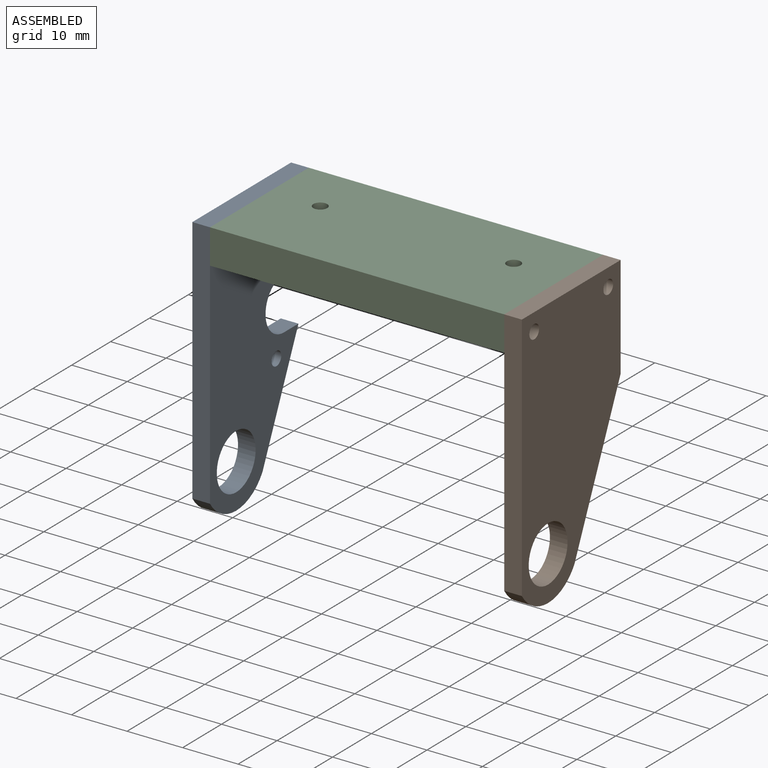
[diagram: assembled view]
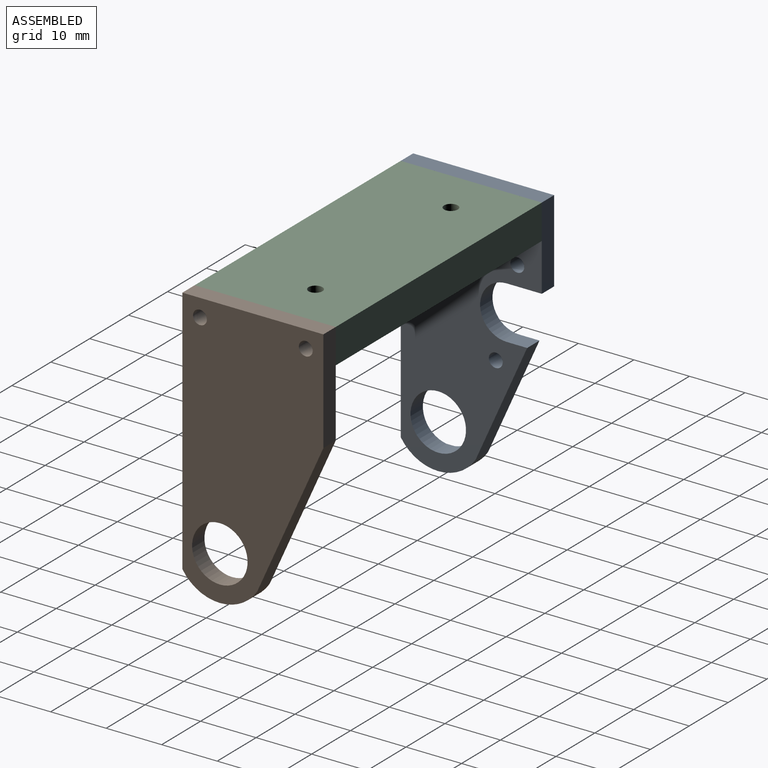
[diagram: assembled view, second angle]
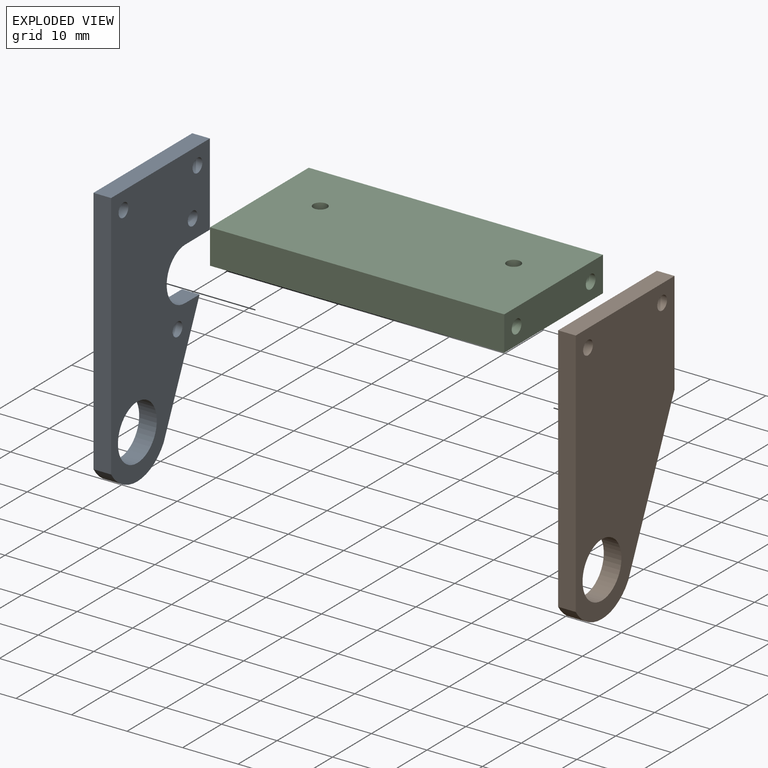
[diagram: exploded view]
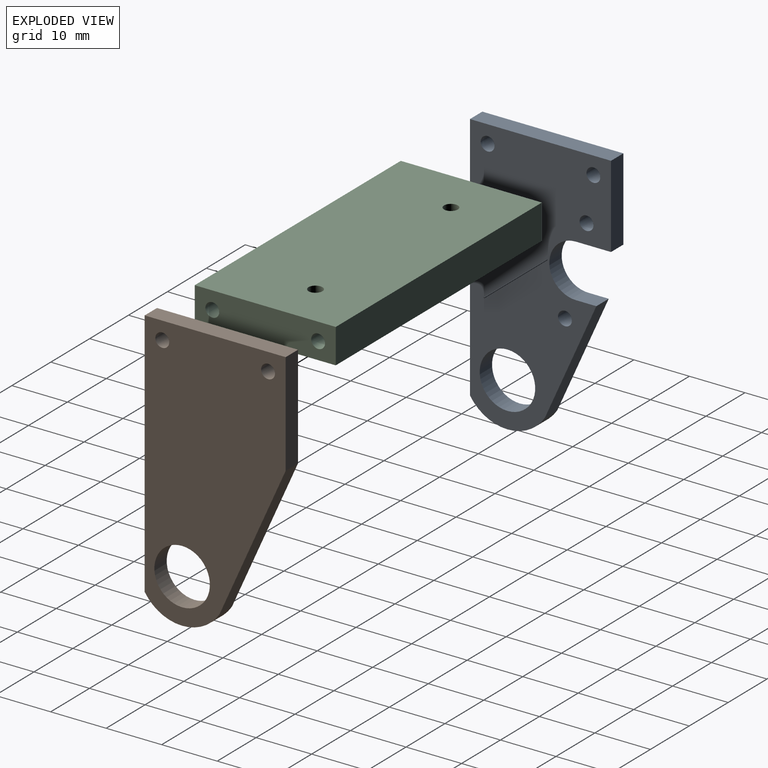
[diagram: exploded view, second angle]
ASSEMBLY  parts=3 mates=6
PART A: 15 faces, bbox 25.4x3.2x48.7 mm
  f0: plane 48.71x25.4mm, normal (0,-1,0), area 834.1mm2, adj f1,f2,f3,f4,f5,f7,f8,f9
  f1: plane 45x3.18mm, normal (-1,0,0), area 142.9mm2, adj f0,f2,f5,f6
  f2: cylinder r=8mm len=13.5mm, axis (0,1,0), area 51mm2, adj f0,f1,f3,f6
  f3: plane 20.63x9.26mm, normal (0.91,0,-0.41), area 71.8mm2, adj f0,f2,f6,f10
  f4: plane 14.85x3.18mm, normal (1,0,0), area 47.1mm2, adj f0,f5,f6,f12
  f5: plane 25.4x3.18mm, normal (0,0,1), area 80.6mm2, adj f0,f1,f4,f6
  f6: plane 48.71x25.4mm, normal (0,1,0), area 834.1mm2, adj f1,f2,f3,f4,f5,f7,f8,f9
  f7: cylinder r=5mm len=10mm, axis (0,-1,0), area 99.7mm2, adj f0,f6
  f8: cylinder r=1.25mm len=3.18mm, axis (0,-1,0), area 24.9mm2, adj f0,f6
  f9: cylinder r=1.25mm len=3.18mm, axis (0,-1,0), area 24.9mm2, adj f0,f6
  f10: plane 3.71x3.18mm, normal (0,0,1), area 11.8mm2, adj f0,f3,f6,f11
  f11: cylinder r=4.76mm len=9.53mm, axis (0,-1,0), area 47.5mm2, adj f0,f6,f10,f12
  f12: plane 6.35x3.18mm, normal (0,0,-1), area 20.2mm2, adj f0,f4,f6,f11
  f13: cylinder r=1.25mm len=3.18mm, axis (0,-1,0), area 24.9mm2, adj f0,f6
  f14: cylinder r=1.25mm len=3.18mm, axis (0,-1,0), area 24.9mm2, adj f0,f6
PART B: 10 faces, bbox 25.4x3.2x48.7 mm
  f0: plane 45x3.18mm, normal (-1,0,0), area 142.9mm2, adj f1,f4,f5,f6
  f1: cylinder r=8mm len=13.5mm, axis (0,1,0), area 51mm2, adj f0,f2,f5,f6
  f2: plane 26.5x11.9mm, normal (0.91,0,-0.41), area 92.2mm2, adj f1,f3,f5,f6
  f3: plane 18.5x3.18mm, normal (1,0,0), area 58.7mm2, adj f2,f4,f5,f6
  f4: plane 25.4x3.18mm, normal (0,0,1), area 80.6mm2, adj f0,f3,f5,f6
  f5: plane 48.71x25.4mm, normal (0,-1,0), area 932.3mm2, adj f0,f1,f2,f3,f4,f7,f8,f9
  f6: plane 48.71x25.4mm, normal (0,1,0), area 932.3mm2, adj f0,f1,f2,f3,f4,f7,f8,f9
  f7: cylinder r=5mm len=10mm, axis (0,-1,0), area 99.7mm2, adj f5,f6
  f8: cylinder r=1.25mm len=3.18mm, axis (0,-1,0), area 24.9mm2, adj f5,f6
  f9: cylinder r=1.25mm len=3.18mm, axis (0,-1,0), area 24.9mm2, adj f5,f6
PART C: 16 faces, bbox 53x25.4x6.3 mm
  f0: plane 53x6.25mm, normal (0,1,0), area 331.2mm2, adj f1,f3,f4,f5
  f1: plane 25.4x6.25mm, normal (-1,0,0), area 148.9mm2, adj f0,f2,f4,f5,f12,f14
  f2: plane 53x6.25mm, normal (0,-1,0), area 331.2mm2, adj f1,f3,f4,f5
  f3: plane 25.4x6.25mm, normal (1,0,0), area 148.9mm2, adj f0,f2,f4,f5,f8,f10
  f4: plane 53x25.4mm, normal (0,0,1), area 1336.4mm2, adj f0,f1,f2,f3,f6,f7
  f5: plane 53x25.4mm, normal (0,0,-1), area 1336.4mm2, adj f0,f1,f2,f3,f6,f7
  f6: cylinder r=1.25mm len=6.25mm, axis (0,0,1), area 49.1mm2, adj f4,f5
  f7: cylinder r=1.25mm len=6.25mm, axis (0,0,1), area 49.1mm2, adj f4,f5
  f8: cylinder r=1.25mm len=10mm, axis (1,0,0), area 78.5mm2, adj f3,f9
  f9: plane 2.5x2.5mm, normal (1,0,0), area 4.9mm2, adj f8
  f10: cylinder r=1.25mm len=10mm, axis (1,0,0), area 78.5mm2, adj f3,f11
  f11: plane 2.5x2.5mm, normal (1,0,0), area 4.9mm2, adj f10
  f12: cylinder r=1.25mm len=10mm, axis (-1,0,0), area 78.5mm2, adj f1,f13
  f13: plane 2.5x2.5mm, normal (-1,0,0), area 4.9mm2, adj f12
  f14: cylinder r=1.25mm len=10mm, axis (-1,0,0), area 78.5mm2, adj f1,f15
  f15: plane 2.5x2.5mm, normal (-1,0,0), area 4.9mm2, adj f14
PLACE A rot(axis=(0,0,1),90deg) t=(-42.65,11.38,-4.58)mm
PLACE B rot(axis=(0,0,1),90deg) t=(13.53,11.38,-4.58)mm
PLACE C rot(axis=(-1,0,0),0deg) t=(-12.97,6.11,6.88)mm
MATE cylindrical A.f9 <-> C.f8  axis (1,0,0) through (-39.47,-3.41,9.95)mm
MATE cylindrical B.f8 <-> C.f14  axis (-1,0,0) through (13.53,15.64,9.95)mm
MATE cylindrical B.f9 <-> C.f12  axis (-1,0,0) through (13.53,-3.41,9.95)mm
MATE cylindrical A.f8 <-> C.f10  axis (1,0,0) through (-39.47,15.64,9.95)mm
MATE planar C.f1 <-> A.f0  axis (-1,0,0) through (-39.47,6.11,10)mm
MATE planar C.f3 <-> B.f6  axis (1,0,0) through (13.53,6.11,10)mm
